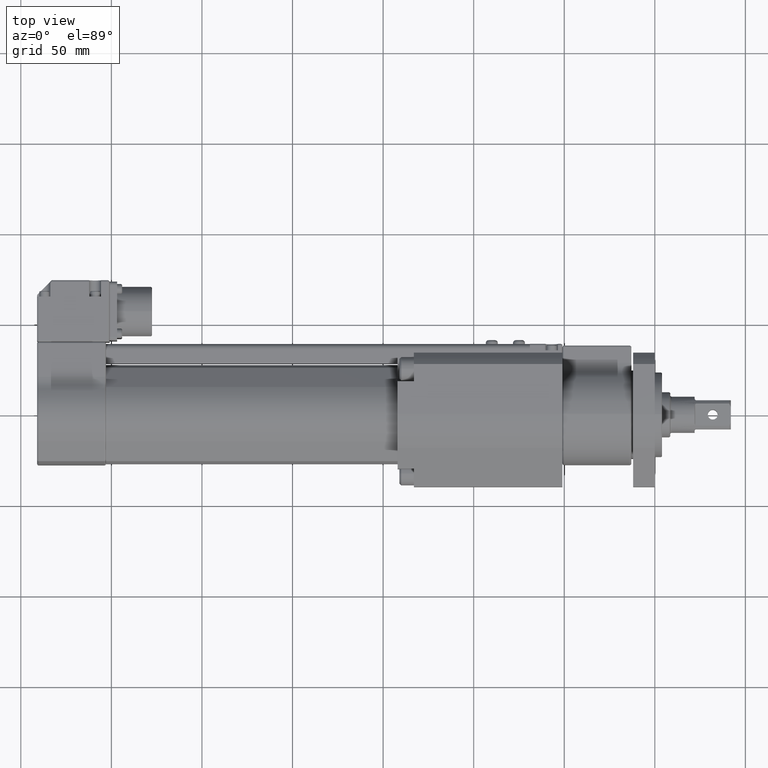
[diagram: clean part render]
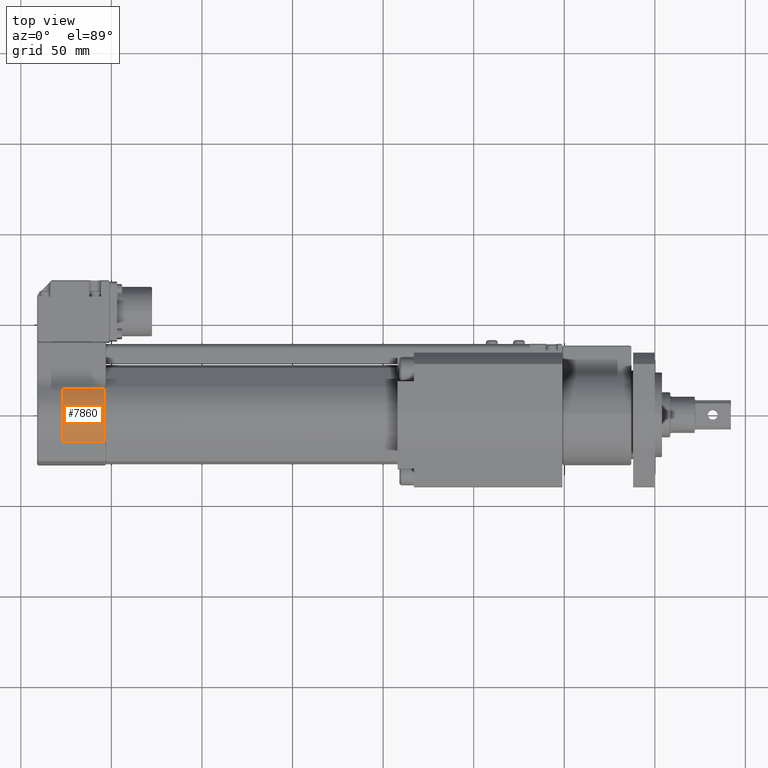
[diagram: same view with one face highlighted and labeled with its STEP entity id]
A machine part, top view. The second image highlights one B-rep face of the part: STEP entity #7860.
In plain terms, the highlighted cylindrical surface (partial cylindrical patch) has radius 24.5 mm, axis along (1, 0, 0).
Its self-contained STEP definition (entity closure, byte-faithful):
#158 = DIRECTION ( 'NONE',  ( 1.000000000000000000, -0.0000000000000000000, -0.0000000000000000000 ) ) ;
#171 = VECTOR ( 'NONE', #8387, 1000.000000000000000 ) ;
#203 = AXIS2_PLACEMENT_3D ( 'NONE', #11606, #158, #7756 ) ;
#289 = DIRECTION ( 'NONE',  ( -1.000000000000000000, 0.0000000000000000000, 0.0000000000000000000 ) ) ;
#301 = EDGE_CURVE ( 'NONE', #760, #1046, #11436, .T. ) ;
#424 = CARTESIAN_POINT ( 'NONE',  ( -327.0000000000000000, -15.08370614547866000, 19.30626346336466500 ) ) ;
#760 = VERTEX_POINT ( 'NONE', #424 ) ;
#1008 = EDGE_LOOP ( 'NONE', ( #2785, #5669, #9837, #1653 ) ) ;
#1027 = EDGE_CURVE ( 'NONE', #1046, #8273, #3302, .T. ) ;
#1046 = VERTEX_POINT ( 'NONE', #3152 ) ;
#1442 = VERTEX_POINT ( 'NONE', #12296 ) ;
#1653 = ORIENTED_EDGE ( 'NONE', *, *, #5057, .F. ) ;
#1689 = CARTESIAN_POINT ( 'NONE',  ( -327.0000000000000000, 13.95534960860682400, 20.13698630136986300 ) ) ;
#2472 = DIRECTION ( 'NONE',  ( 1.000000000000000000, -0.0000000000000000000, -0.0000000000000000000 ) ) ;
#2785 = ORIENTED_EDGE ( 'NONE', *, *, #301, .T. ) ;
#3152 = CARTESIAN_POINT ( 'NONE',  ( -304.0000000000000000, -15.08370614547866000, 19.30626346336466500 ) ) ;
#3302 = CIRCLE ( 'NONE', #6812, 24.50000000000000000 ) ;
#4004 = DIRECTION ( 'NONE',  ( -1.000000000000000000, 0.0000000000000000000, 0.0000000000000000000 ) ) ;
#5057 = EDGE_CURVE ( 'NONE', #760, #1442, #10902, .T. ) ;
#5669 = ORIENTED_EDGE ( 'NONE', *, *, #1027, .T. ) ;
#6007 = CARTESIAN_POINT ( 'NONE',  ( -304.0000000000000000, 0.0000000000000000000, 0.0000000000000000000 ) ) ;
#6812 = AXIS2_PLACEMENT_3D ( 'NONE', #6007, #289, #6961 ) ;
#6961 = DIRECTION ( 'NONE',  ( 0.0000000000000000000, 0.0000000000000000000, -1.000000000000000000 ) ) ;
#7318 = FACE_OUTER_BOUND ( 'NONE', #1008, .T. ) ;
#7485 = LINE ( 'NONE', #1689, #171 ) ;
#7606 = EDGE_CURVE ( 'NONE', #1442, #8273, #7485, .T. ) ;
#7607 = AXIS2_PLACEMENT_3D ( 'NONE', #9737, #4004, #10700 ) ;
#7756 = DIRECTION ( 'NONE',  ( 0.0000000000000000000, 0.0000000000000000000, -1.000000000000000000 ) ) ;
#7860 = ADVANCED_FACE ( 'NONE', ( #7318 ), #12110, .T. ) ;
#8208 = CARTESIAN_POINT ( 'NONE',  ( -327.0000000000000000, -15.08370614547866000, 19.30626346336466500 ) ) ;
#8273 = VERTEX_POINT ( 'NONE', #9995 ) ;
#8387 = DIRECTION ( 'NONE',  ( 1.000000000000000000, -0.0000000000000000000, -0.0000000000000000000 ) ) ;
#8592 = VECTOR ( 'NONE', #2472, 1000.000000000000000 ) ;
#9737 = CARTESIAN_POINT ( 'NONE',  ( -327.0000000000000000, 0.0000000000000000000, 0.0000000000000000000 ) ) ;
#9837 = ORIENTED_EDGE ( 'NONE', *, *, #7606, .F. ) ;
#9995 = CARTESIAN_POINT ( 'NONE',  ( -304.0000000000000000, 13.95534960860682400, 20.13698630136986300 ) ) ;
#10700 = DIRECTION ( 'NONE',  ( 0.0000000000000000000, 0.0000000000000000000, 1.000000000000000000 ) ) ;
#10902 = CIRCLE ( 'NONE', #7607, 24.50000000000000000 ) ;
#11436 = LINE ( 'NONE', #8208, #8592 ) ;
#11606 = CARTESIAN_POINT ( 'NONE',  ( -327.0000000000000000, 0.0000000000000000000, 0.0000000000000000000 ) ) ;
#12110 = CYLINDRICAL_SURFACE ( 'NONE', #203, 24.50000000000000000 ) ;
#12296 = CARTESIAN_POINT ( 'NONE',  ( -327.0000000000000000, 13.95534960860682400, 20.13698630136986300 ) ) ;